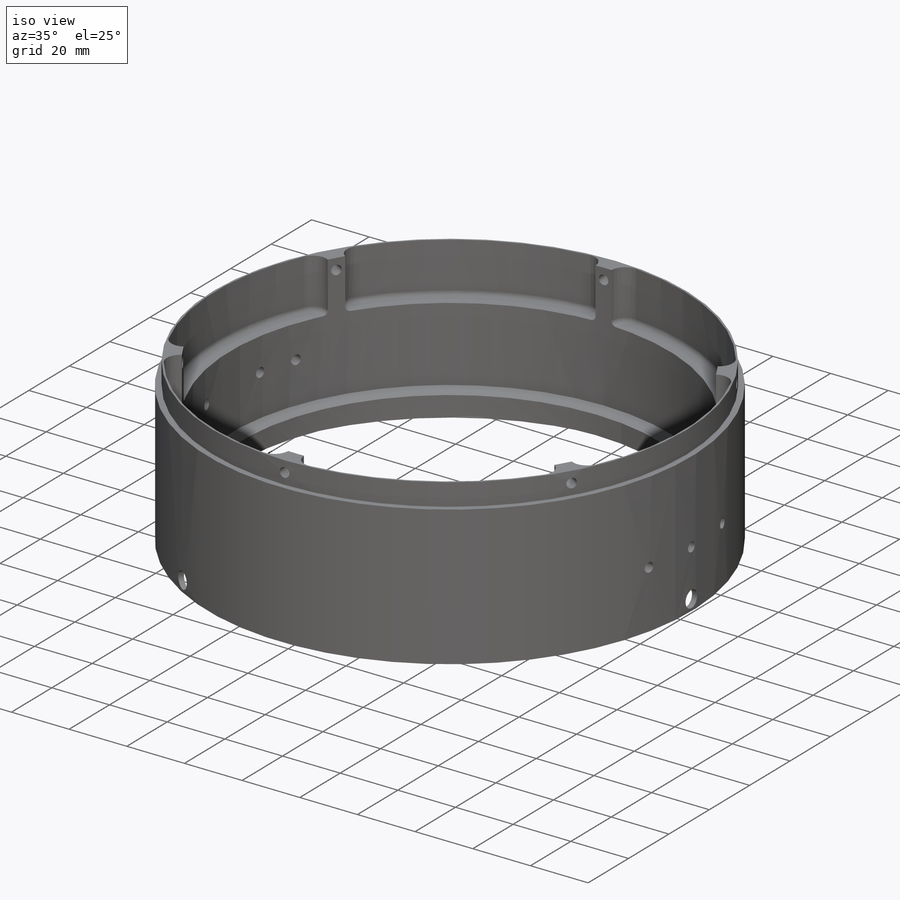
[diagram: iso view]
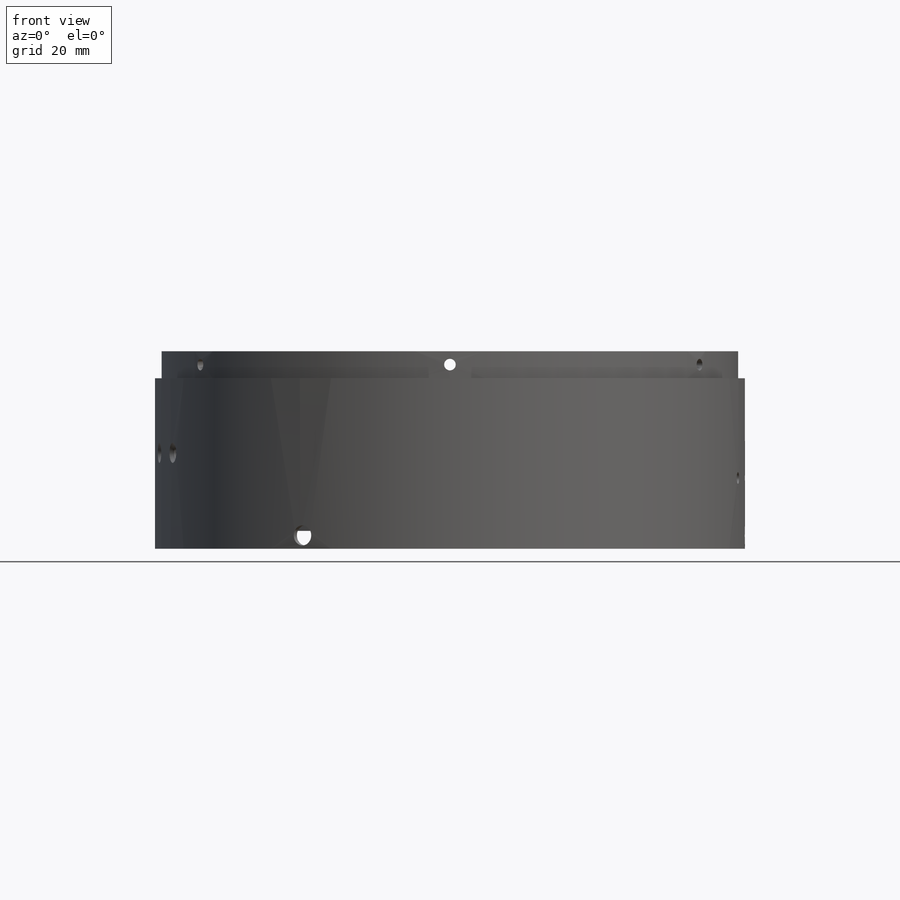
[diagram: front view]
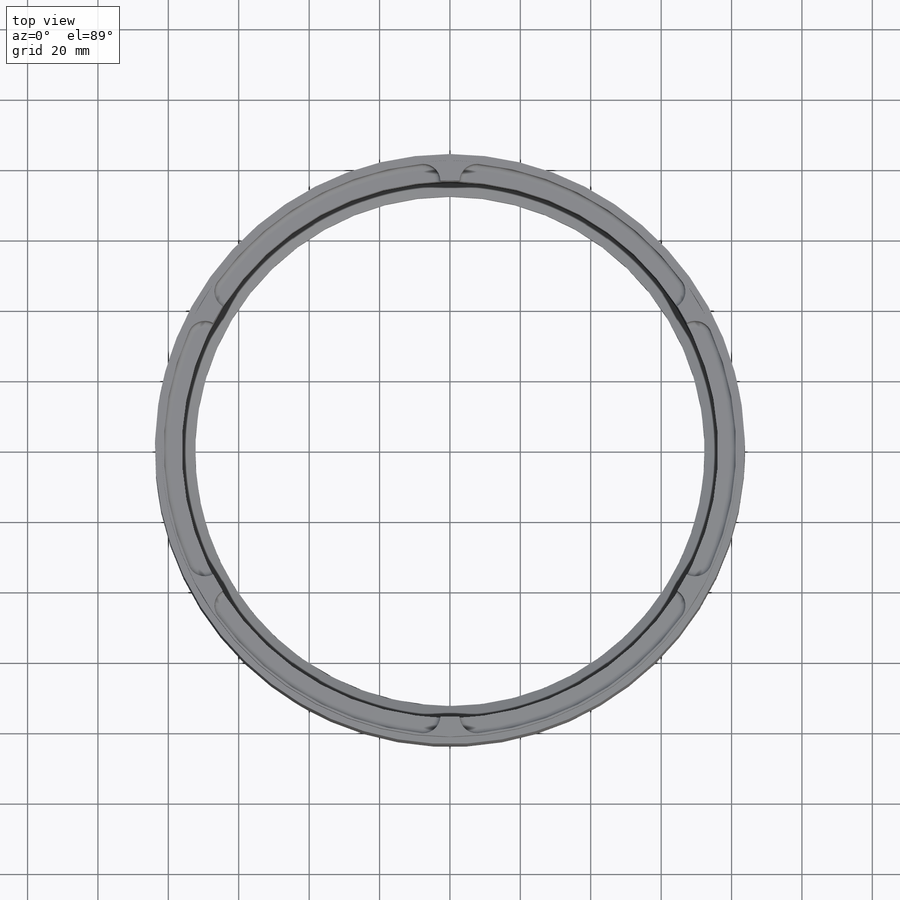
[diagram: top view]
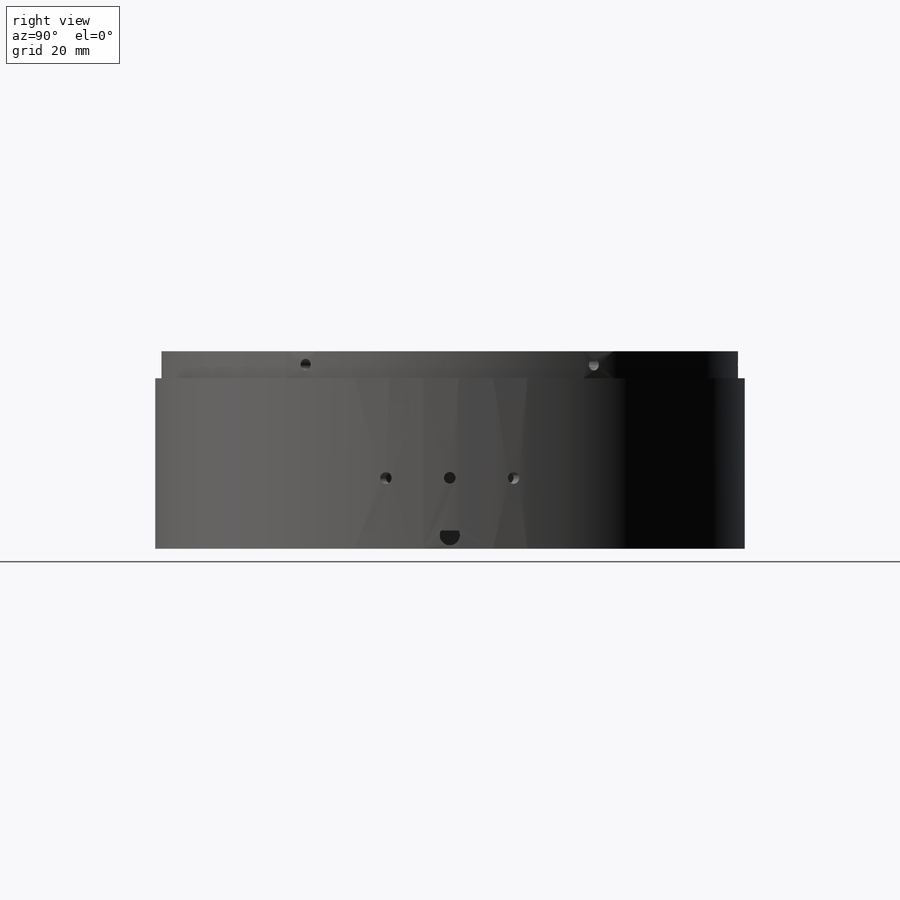
[diagram: right view]
SOLIDWORKS PART (.sldprt)
format: sldprt  version: not decoded by parser v0  size: 552,448 bytes
history: native  units: mm
features: sketch x10, pattern_circular x6, plane x6, cut_extrude x5, material x1, revolve x1, fillet x1, cut_revolve x1, mirror x1 (+13 scaffold rows collapsed)
feature tree (45):
  scaffold x13  (default folders/planes/origin — collapsed)
  material  "Material <not specified>"
  sketch  "Sketch1"  dims[c1.D1=166.878mm c1.D2=~5.461347mm c2.D2=45.0deg c2.D3=~5.213104mm c3.D3=45.0deg c3.D4=6.5024mm c3.D5=~25.183691mm c4.D5=20.0deg c4.D6=~0.679407mm c5.D6=60.0deg c5.D7=0.8321mm c6.D7=45.0deg c7.D7=~1.176768mm c8.D7=60.0deg c8.D8=144.78mm c8.D9=3.81mm c8.D10=~1.069688mm c8.D5=3.81mm c9.D10=1.905mm c9.D11=~1.019111mm c9.D6=1.016mm c9.D7=~1.064505mm c10.D7=60.0deg c10.D11=1.016mm c11.D11=60.0deg c11.D12=50.8mm c11.D13=12.7mm c11.D14=5.08mm c11.D15=~23.632604mm c12.D15=20.0deg c12.D16=6.35mm c12.D17=151.638mm c12.D9=152.4mm c12.D12=5.6896mm c12.D13=0.0mm c13.D17=3.81mm c13.D5=6.731mm c14.D17=7.6708mm c14.D16=10.16mm c14.D18=0.381mm c14.D19=0.635mm c14.D20=~33.600891mm c15.D16=166.878mm c15.D18=166.878mm c15.D5=5.6896mm c15.D12=166.878mm c15.D13=1.905mm c16.D16=~0.586588mm c16.D18=44.45mm c16.D6=5.08mm c16.D7=56.134mm c16.D10=8.89mm c17.D10=15.0deg c17.D11=~5.084859mm c18.D11=95.0deg c18.D13=163.068mm c18.D2=3.81mm c19.D2=20.0deg c19.D3=1.778mm c19.D10=~12.969127mm c19.D11=167.64mm c19.D12=167.64mm c19.D13=0.635mm c20.D11=56.134mm]
  revolve  "Revolve1"  Angle=360deg
  sketch  "Sketch2"  dims[c1.D1=8.5852mm c1.D3=8.5852mm c2.D1=4.9276mm c2.D2=~38.575846mm c3.D2=24.25deg c3.D3=76.2mm c4.D3=5.75deg c4.D4=1.524mm c4.D2=~76.35916mm c5.D2=24.25deg c5.D3=~75.322914mm c6.D3=5.75deg]
  cut_extrude  "Cut-Extrude1"  Depth=17.4498mm
  fillet  "Fillet1"  Radius=1.5875mm
  pattern_circular  "CirPattern2"  Count=6 Angle=60deg
  plane  "Plane2"  Offset=25.908mm
  sketch  "Sketch9"  dims[c1.D1=81.8896mm c2.D1=60.0deg c2.D2=~94.871881mm c3.D2=30.0deg c3.D1=~126.222004mm c4.D1=120.0deg c4.D2=~212.095961mm c5.D2=30.0deg c5.D3=~183.68049mm c6.D3=90.0deg c6.D2=~183.68049mm c7.D2=90.0deg c8.D2=~183.68049mm c9.D2=90.0deg c9.D3=~219.712628mm c10.D3=30.0deg c10.D2=~212.095961mm c11.D2=30.0deg c11.D3=~183.68049mm c12.D3=120.0deg]
  sketch  "Sketch11"  dims[c1.D1=163.322mm c1.D2=148.844mm c2.D1=164.084mm]
  cut_extrude  "Cut-Extrude7"  Depth=4.699mm
  plane  "Plane5"  Offset=1.9812mm
  plane  "Plane6"  Offset=1.9812mm
  sketch  "Sketch12"  dims[D1=167.64mm D2=167.64mm]
  plane  "Plane7"
  sketch  "Sketch14"  dims[c1.D1=~3.24315mm c1.D2=3.2766mm c2.D1=3.81mm]
  cut_extrude  "Cut-Extrude8"  Depth=2.54mm
  pattern_circular  "CirPattern3"  Count=3 Angle=360deg
  sketch  "Sketch16"
  plane  "Plane8"
  sketch  "Sketch17"  dims[c1.D1=5.715mm c1.D2=3.2766mm c1.D3=~2.394334mm c2.D3=50.0deg]
  cut_revolve  "Cut-Revolve1"  Angle=360deg
  pattern_circular  "CirPattern4"  Count=2 Angle=10deg
  mirror  "Mirror1"
  plane  "Plane9"
  sketch  "Sketch18"  dims[D1=5.715mm D2=3.81mm]
  cut_extrude  "Cut-Extrude9"  Depth=2.54mm
  pattern_circular  "CirPattern5"  Count=3 Angle=360deg
  sketch  "Sketch19"  dims[D1=3.2766mm]
  cut_extrude  "Cut-Extrude11"  Depth=11.43mm
  pattern_circular  "CirPattern6"  Count=2 Angle=12.5deg
  pattern_circular  "CirPattern7"  Count=2 Angle=12.5deg
decode coverage: 23 of 25 modeling features carry decoded parameters
note: ~ marks probable driven/reference dimensions
note: suppression state not decoded; provenance and decode notes live in map.json
